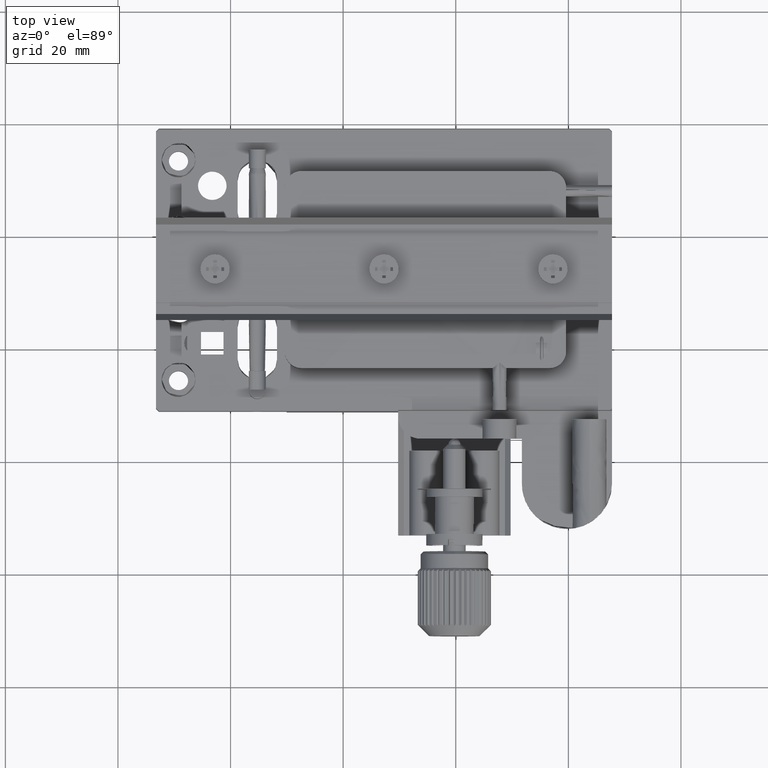
[diagram: clean part render]
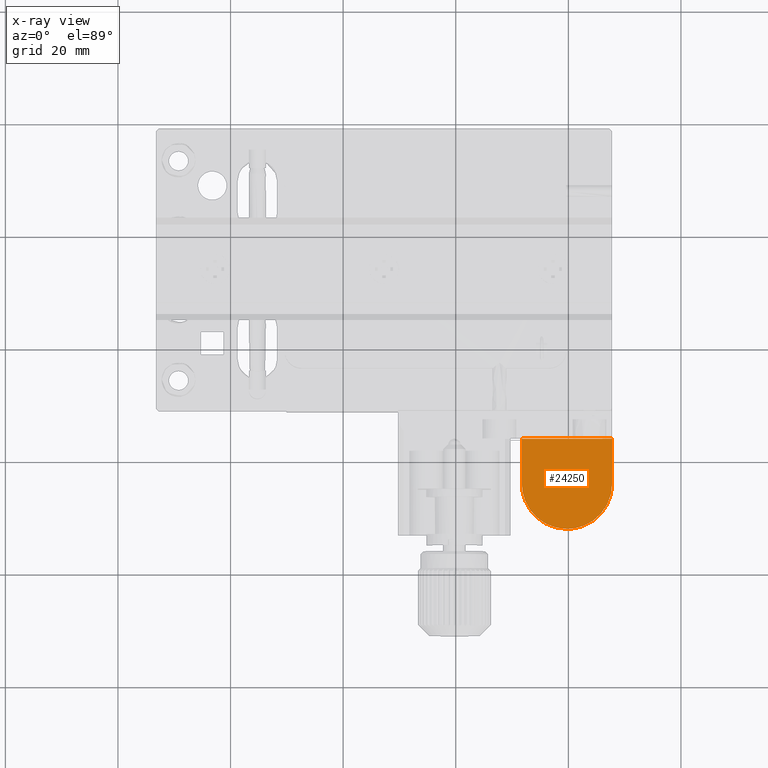
[diagram: x-ray — body ghosted, one internal face saturated and labeled with its STEP entity id]
A machine part, top view, then the same camera in x-ray: the body is ghosted and one INTERNAL B-rep face — a face not visible from any outside direction — is saturated and labeled: STEP entity #24250.
In plain terms, the highlighted face is a freeform B-spline surface patch.
Its self-contained STEP definition (entity closure, byte-faithful):
#859 = EDGE_CURVE ( 'NONE', #1135, #1075, #6763, .T. ) ;
#883 = CARTESIAN_POINT ( 'NONE',  ( 31.74485817999460480, -36.44678477413209805, 9.503960327354059601 ) ) ;
#896 = B_SPLINE_CURVE_WITH_KNOTS ( 'NONE', 3,
 ( #7450, #18912, #8016, #22028, #21477, #7268, #2474, #30496, #12997, #18539, #21849, #36034, #15956, #27005, #10605, #5044, #5228, #36214 ),
 .UNSPECIFIED., .F., .F.,
 ( 4, 2, 2, 2, 2, 2, 2, 2, 4 ),
 ( -1.000000000000000000, -0.8750000000000000000, -0.7500000000000000000, -0.6250000000000000000, -0.5000000000000000000, -0.3750000000000000000, -0.2500000000000000000, -0.1250000000000000000, -0.000000000000000000 ),
 .UNSPECIFIED. ) ;
#1075 = VERTEX_POINT ( 'NONE', #13189 ) ;
#1135 = VERTEX_POINT ( 'NONE', #9100 ) ;
#1555 = CARTESIAN_POINT ( 'NONE',  ( 47.74878331257142605, -39.08979280703454151, 9.503960327354070259 ) ) ;
#1918 = CARTESIAN_POINT ( 'NONE',  ( 46.12085313421312804, -49.31077972999475634, 9.503960327354061377 ) ) ;
#2062 = B_SPLINE_CURVE_WITH_KNOTS ( 'NONE', 1,
 ( #14632, #17381 ),
 .UNSPECIFIED., .F., .F.,
 ( 2, 2 ),
 ( -1.000000000000000000, 0.000000000000000000 ),
 .UNSPECIFIED. ) ;
#2287 = CARTESIAN_POINT ( 'NONE',  ( 43.30653206165389690, -51.62347329664594753, 9.503960327354059601 ) ) ;
#2474 = CARTESIAN_POINT ( 'NONE',  ( 35.75228657045573755, -51.38046268564016827, 9.503960327354059601 ) ) ;
#2642 = CARTESIAN_POINT ( 'NONE',  ( 44.64190919404138214, -50.79190275970472612, 9.503960327354059601 ) ) ;
#2985 = ORIENTED_EDGE ( 'NONE', *, *, #28680, .F. ) ;
#3501 = VERTEX_POINT ( 'NONE', #11267 ) ;
#4667 = CARTESIAN_POINT ( 'NONE',  ( 47.75666855230990393, -44.42312031127040228, 9.503960327354059601 ) ) ;
#5044 = CARTESIAN_POINT ( 'NONE',  ( 31.80937350455965174, -45.49126347460693154, 9.503960327354064930 ) ) ;
#5228 = CARTESIAN_POINT ( 'NONE',  ( 31.75746195711071707, -44.97158216521994945, 9.503960327354064930 ) ) ;
#6525 = EDGE_CURVE ( 'NONE', #10646, #13010, #26062, .T. ) ;
#6763 = B_SPLINE_CURVE_WITH_KNOTS ( 'NONE', 3,
 ( #18541, #1555, #35299, #9322 ),
 .UNSPECIFIED., .F., .F.,
 ( 4, 4 ),
 ( -1.000000000000000000, -0.000000000000000000 ),
 .UNSPECIFIED. ) ;
#7268 = CARTESIAN_POINT ( 'NONE',  ( 36.21305464624234105, -51.62648211191601177, 9.503960327354061377 ) ) ;
#7450 = CARTESIAN_POINT ( 'NONE',  ( 39.75667729595609501, -52.43494817087820081, 9.503960327354059601 ) ) ;
#8016 = CARTESIAN_POINT ( 'NONE',  ( 38.71209786944533704, -52.38379530629698877, 9.503960327354059601 ) ) ;
#9100 = CARTESIAN_POINT ( 'NONE',  ( 47.74484069270219777, -36.42312905491660047, 9.503960327354070259 ) ) ;
#9322 = CARTESIAN_POINT ( 'NONE',  ( 47.75666855230990393, -44.42312031127040228, 9.503960327354059601 ) ) ;
#10234 = CARTESIAN_POINT ( 'NONE',  ( 31.64878726529880026, -36.32705814022089896, 9.503960327354070259 ) ) ;
#10605 = CARTESIAN_POINT ( 'NONE',  ( 32.01546785933856398, -46.52037644268679628, 9.503960327354063153 ) ) ;
#10646 = VERTEX_POINT ( 'NONE', #19644 ) ;
#11267 = CARTESIAN_POINT ( 'NONE',  ( 39.75667729595609501, -52.43494817087820081, 9.503960327354059601 ) ) ;
#11390 = B_SPLINE_CURVE_WITH_KNOTS ( 'NONE', 3,
 ( #4667, #16680, #27372, #16315, #16500, #30487, #21660, #1918, #27557, #13176, #2642, #18902, #2287, #27739, #16132, #13553, #14831, #11689 ),
 .UNSPECIFIED., .F., .F.,
 ( 4, 2, 2, 2, 2, 2, 2, 2, 4 ),
 ( -1.000000000000000000, -0.8750000000000000000, -0.7500000000000000000, -0.6250000000000000000, -0.5000000000000000000, -0.3750000000000000000, -0.2500000000000000000, -0.1250000000000000000, -0.000000000000000000 ),
 .UNSPECIFIED. ) ;
#11689 = CARTESIAN_POINT ( 'NONE',  ( 39.75667729595609501, -52.43494817087820081, 9.503960327354059601 ) ) ;
#12997 = CARTESIAN_POINT ( 'NONE',  ( 34.47534180436631601, -50.46676484444564892, 9.503960327354061377 ) ) ;
#13010 = VERTEX_POINT ( 'NONE', #883 ) ;
#13176 = CARTESIAN_POINT ( 'NONE',  ( 45.04622639214946389, -50.45965877400842459, 9.503960327354059601 ) ) ;
#13189 = CARTESIAN_POINT ( 'NONE',  ( 47.75666855230990393, -44.42312031127040228, 9.503960327354059601 ) ) ;
#13219 = CARTESIAN_POINT ( 'NONE',  ( 31.74880079986384374, -39.11344852625003199, 9.503960327354068482 ) ) ;
#13553 = CARTESIAN_POINT ( 'NONE',  ( 40.80320342951921475, -52.38361272804840496, 9.503960327354061377 ) ) ;
#14632 = CARTESIAN_POINT ( 'NONE',  ( 31.74485817999460480, -36.44678477413209805, 9.503960327354059601 ) ) ;
#14831 = CARTESIAN_POINT ( 'NONE',  ( 40.28247922157883920, -52.43494817087820792, 9.503960327354061377 ) ) ;
#15591 = CARTESIAN_POINT ( 'NONE',  ( 47.85274821065190309, -36.32705814022089896, 9.503960327354070259 ) ) ;
#15956 = CARTESIAN_POINT ( 'NONE',  ( 32.57039645608691103, -47.98919698728357019, 9.503960327354063153 ) ) ;
#16132 = CARTESIAN_POINT ( 'NONE',  ( 41.83449641003532804, -52.17827095672912918, 9.503960327354059601 ) ) ;
#16175 = CARTESIAN_POINT ( 'NONE',  ( 31.75274341973307557, -41.78011227836795882, 9.503960327354066706 ) ) ;
#16315 = CARTESIAN_POINT ( 'NONE',  ( 47.50307334696550043, -46.50130141107926818, 9.503960327354061377 ) ) ;
#16500 = CARTESIAN_POINT ( 'NONE',  ( 47.35175847683099448, -47.00226275973682988, 9.503960327354063153 ) ) ;
#16680 = CARTESIAN_POINT ( 'NONE',  ( 47.75744589146805907, -44.94888800506387838, 9.503960327354064930 ) ) ;
#17381 = CARTESIAN_POINT ( 'NONE',  ( 47.74484069270219777, -36.42312905491660047, 9.503960327354070259 ) ) ;
#17839 = ORIENTED_EDGE ( 'NONE', *, *, #6525, .F. ) ;
#18539 = CARTESIAN_POINT ( 'NONE',  ( 33.73267094192810589, -49.72520046697015061, 9.503960327354064930 ) ) ;
#18541 = CARTESIAN_POINT ( 'NONE',  ( 47.74484069270219777, -36.42312905491660047, 9.503960327354070259 ) ) ;
#18902 = CARTESIAN_POINT ( 'NONE',  ( 43.76794364164457818, -51.37657692760133443, 9.503960327354061377 ) ) ;
#18912 = CARTESIAN_POINT ( 'NONE',  ( 39.23190424335453486, -52.43494817087819371, 9.503960327354059601 ) ) ;
#19302 = CARTESIAN_POINT ( 'NONE',  ( 31.74485817999460480, -36.44678477413209805, 9.503960327354059601 ) ) ;
#19644 = CARTESIAN_POINT ( 'NONE',  ( 31.75668603960230030, -44.44677603048589987, 9.503960327354059601 ) ) ;
#20725 = EDGE_CURVE ( 'NONE', #13010, #1135, #2062, .T. ) ;
#21158 = B_SPLINE_SURFACE_WITH_KNOTS ( 'NONE', 1, 1, ( 
 ( #15591, #27571 ),
 ( #10234, #24239 ) ),
 .UNSPECIFIED., .F., .F., .F.,
 ( 2, 2 ),
 ( 2, 2 ),
 ( 0.000000000000000000, 1.000000000000000000 ),
 ( 0.000000000000000000, 1.000000000000000000 ),
 .UNSPECIFIED. ) ;
#21477 = CARTESIAN_POINT ( 'NONE',  ( 37.18282920665321711, -52.02774890399040686, 9.503960327354059601 ) ) ;
#21660 = CARTESIAN_POINT ( 'NONE',  ( 46.70422358501378568, -48.43594340995701231, 9.503960327354061377 ) ) ;
#21849 = CARTESIAN_POINT ( 'NONE',  ( 33.40097514210839336, -49.32170241984510284, 9.503960327354063153 ) ) ;
#22028 = CARTESIAN_POINT ( 'NONE',  ( 37.68271177220564994, -52.17924212936407002, 9.503960327354057824 ) ) ;
#24239 = CARTESIAN_POINT ( 'NONE',  ( 31.64878726529880026, -52.53101908557390232, 9.503960327354059601 ) ) ;
#24250 = ADVANCED_FACE ( 'NONE', ( #27386 ), #21158, .T. ) ;
#25233 = ORIENTED_EDGE ( 'NONE', *, *, #859, .F. ) ;
#26062 = B_SPLINE_CURVE_WITH_KNOTS ( 'NONE', 3,
 ( #30523, #16175, #13219, #19302 ),
 .UNSPECIFIED., .F., .F.,
 ( 4, 4 ),
 ( -1.000000000000000000, -0.000000000000000000 ),
 .UNSPECIFIED. ) ;
#26408 = EDGE_CURVE ( 'NONE', #3501, #10646, #896, .T. ) ;
#27005 = CARTESIAN_POINT ( 'NONE',  ( 32.16768419343112839, -47.02002178672940857, 9.503960327354064930 ) ) ;
#27372 = CARTESIAN_POINT ( 'NONE',  ( 47.70687072693904440, -45.46973643564071210, 9.503960327354064930 ) ) ;
#27386 = FACE_OUTER_BOUND ( 'NONE', #31004, .T. ) ;
#27557 = CARTESIAN_POINT ( 'NONE',  ( 45.78919716942215956, -49.71557941336569542, 9.503960327354061377 ) ) ;
#27571 = CARTESIAN_POINT ( 'NONE',  ( 47.85274821065190309, -52.53101908557390232, 9.503960327354059601 ) ) ;
#27739 = CARTESIAN_POINT ( 'NONE',  ( 42.33522079041227215, -52.02623139180229117, 9.503960327354061377 ) ) ;
#28680 = EDGE_CURVE ( 'NONE', #1075, #3501, #11390, .T. ) ;
#29148 = ORIENTED_EDGE ( 'NONE', *, *, #20725, .F. ) ;
#30487 = CARTESIAN_POINT ( 'NONE',  ( 46.95044903737638720, -47.97417345683589218, 9.503960327354063153 ) ) ;
#30496 = CARTESIAN_POINT ( 'NONE',  ( 34.87932154106493954, -50.79787381482955055, 9.503960327354059601 ) ) ;
#30523 = CARTESIAN_POINT ( 'NONE',  ( 31.75668603960230030, -44.44677603048589987, 9.503960327354059601 ) ) ;
#31004 = EDGE_LOOP ( 'NONE', ( #29148, #17839, #35746, #2985, #25233 ) ) ;
#35299 = CARTESIAN_POINT ( 'NONE',  ( 47.75272593244066144, -41.75645655915246834, 9.503960327354066706 ) ) ;
#35746 = ORIENTED_EDGE ( 'NONE', *, *, #26408, .F. ) ;
#36034 = CARTESIAN_POINT ( 'NONE',  ( 32.81708534293220936, -48.44960699017106265, 9.503960327354064930 ) ) ;
#36214 = CARTESIAN_POINT ( 'NONE',  ( 31.75668603960230030, -44.44677603048589987, 9.503960327354059601 ) ) ;